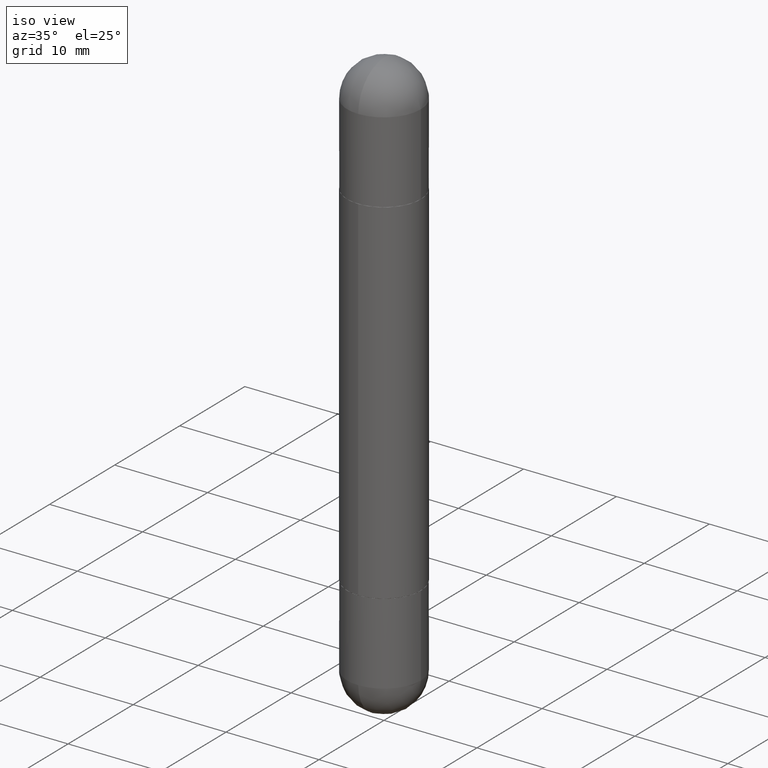
[diagram: clean part render]
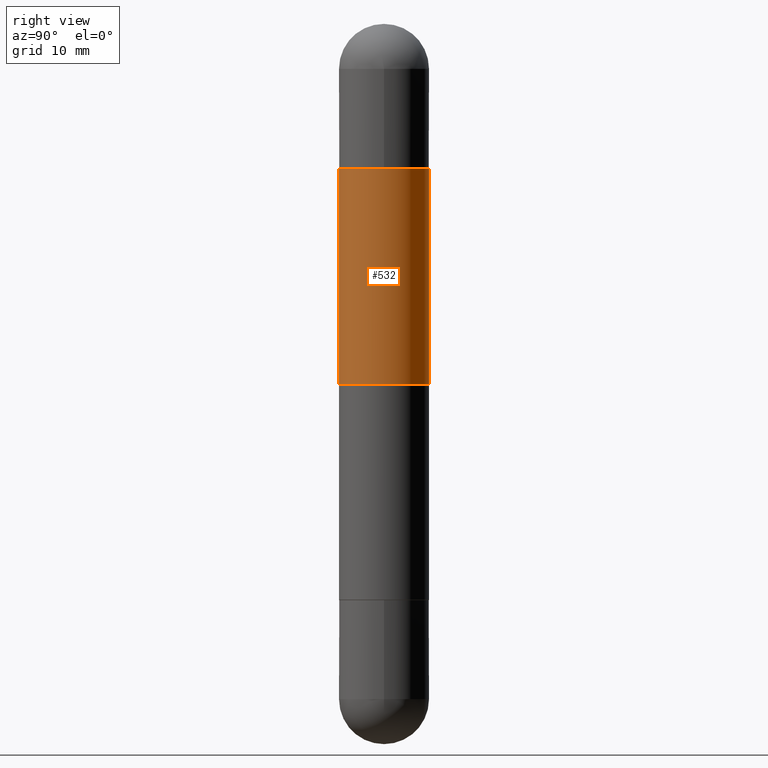
[diagram: tour spotlight — one face highlighted and labeled with its STEP entity id]
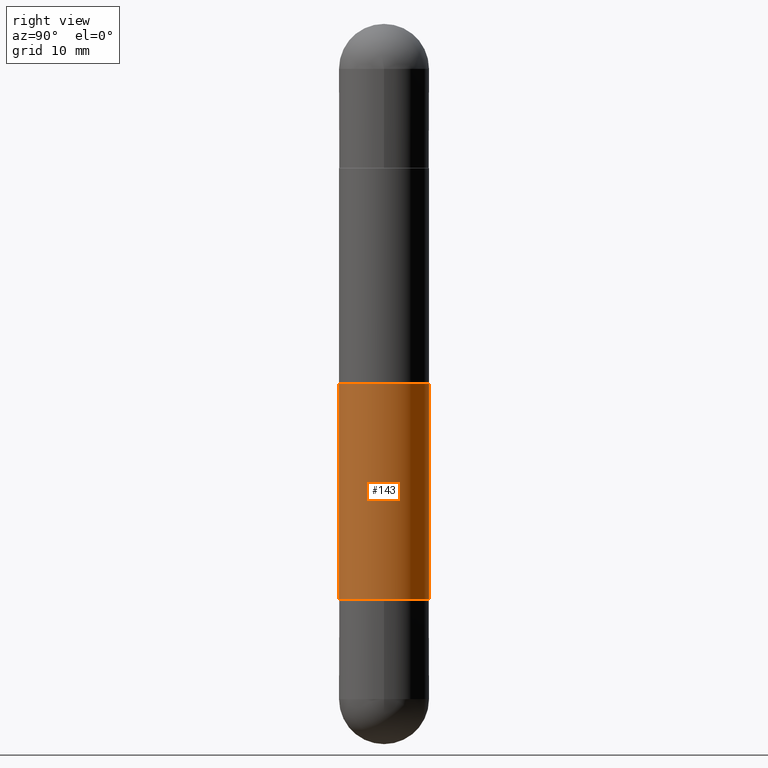
[diagram: tour spotlight — one face highlighted and labeled with its STEP entity id]
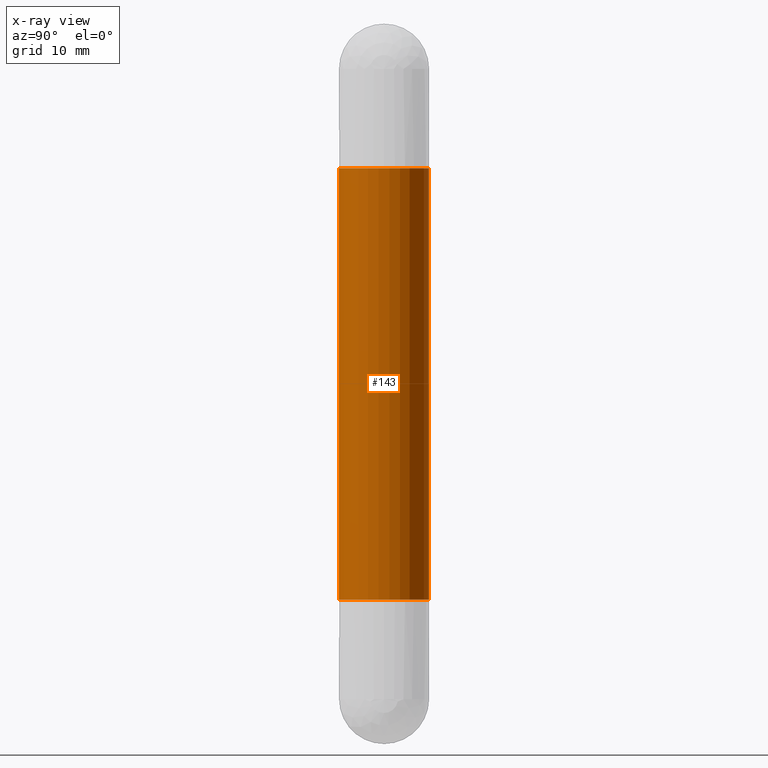
[diagram: x-ray of the same camera — body ghosted, this tour face saturated]
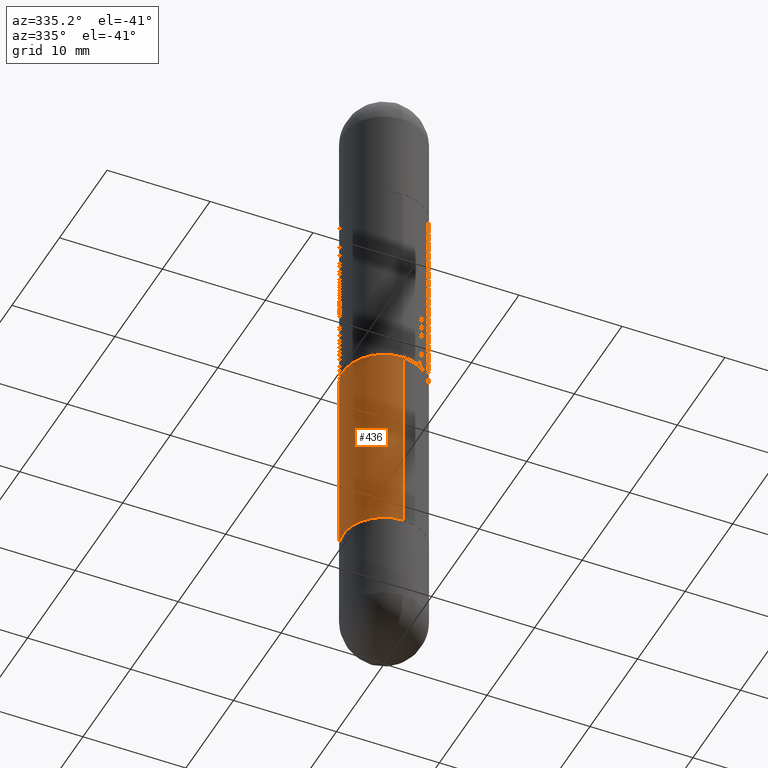
[diagram: tour spotlight — one face highlighted and labeled with its STEP entity id]
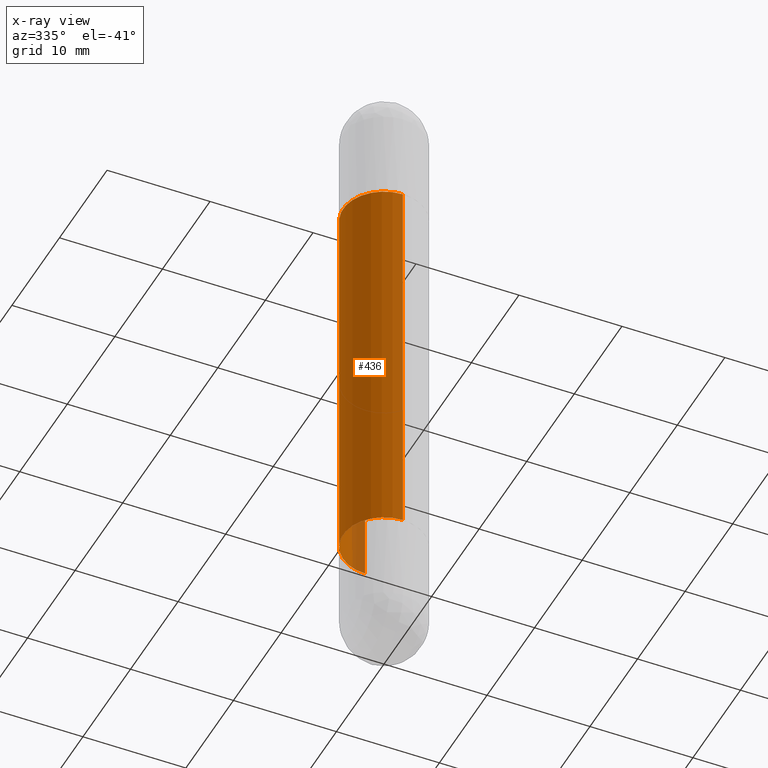
[diagram: x-ray of the same camera — body ghosted, this tour face saturated]
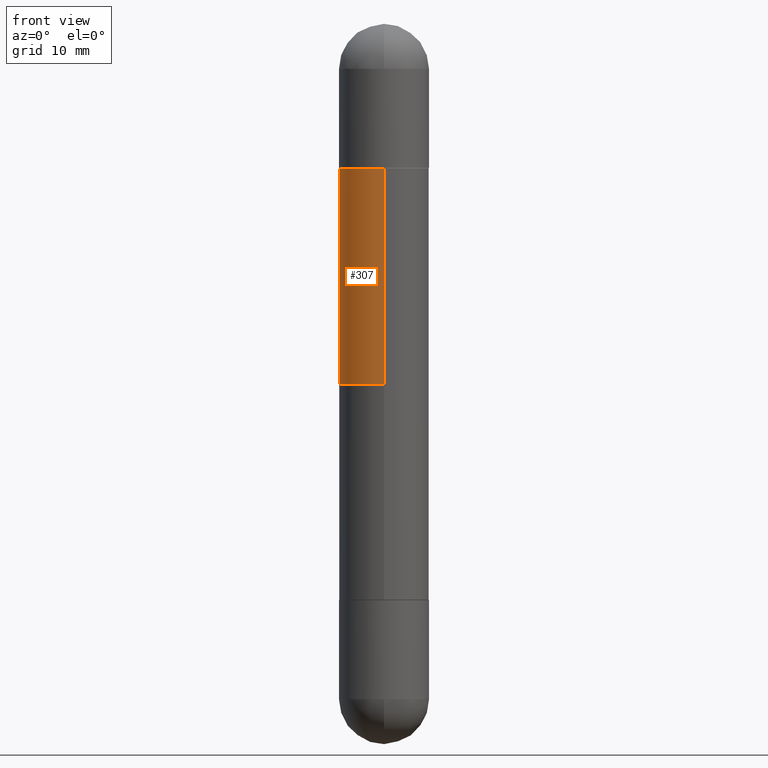
[diagram: tour spotlight — one face highlighted and labeled with its STEP entity id]
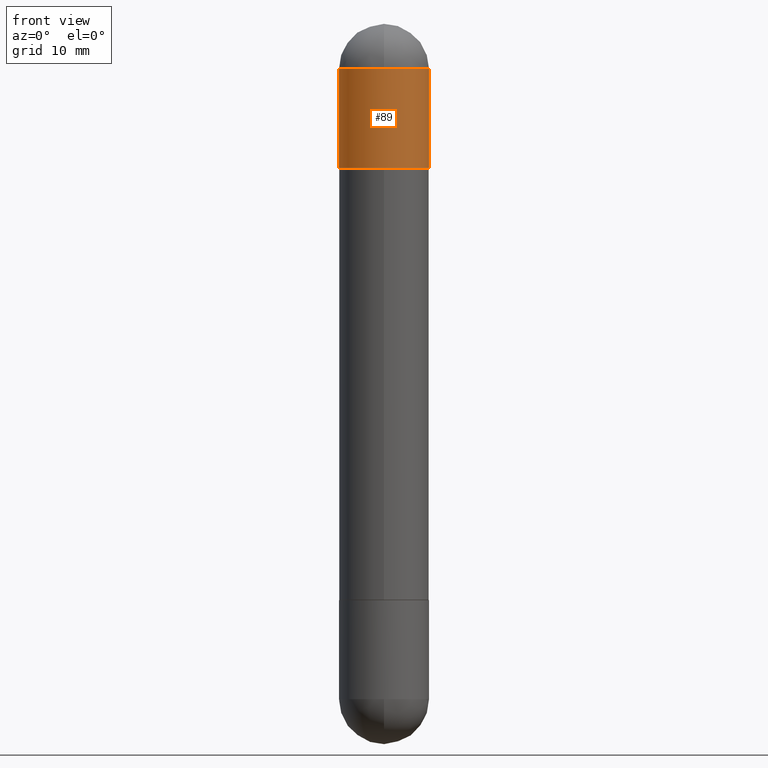
[diagram: tour spotlight — one face highlighted and labeled with its STEP entity id]
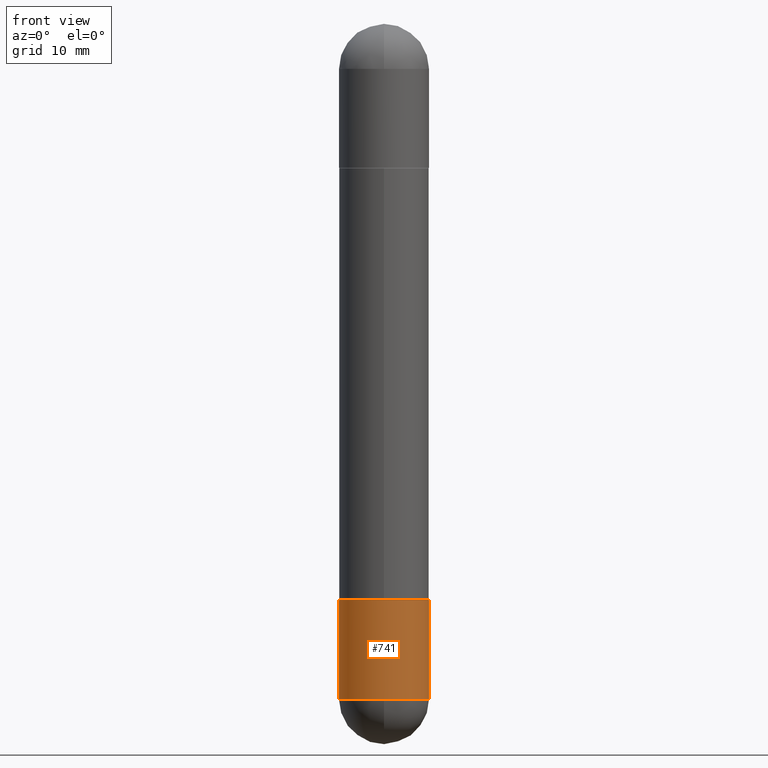
[diagram: tour spotlight — one face highlighted and labeled with its STEP entity id]
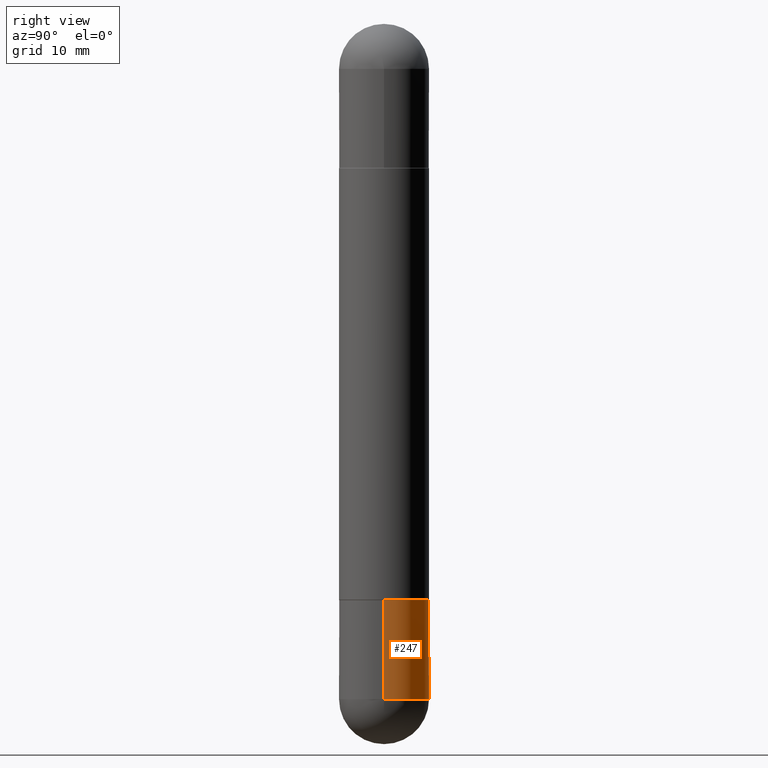
[diagram: tour spotlight — one face highlighted and labeled with its STEP entity id]
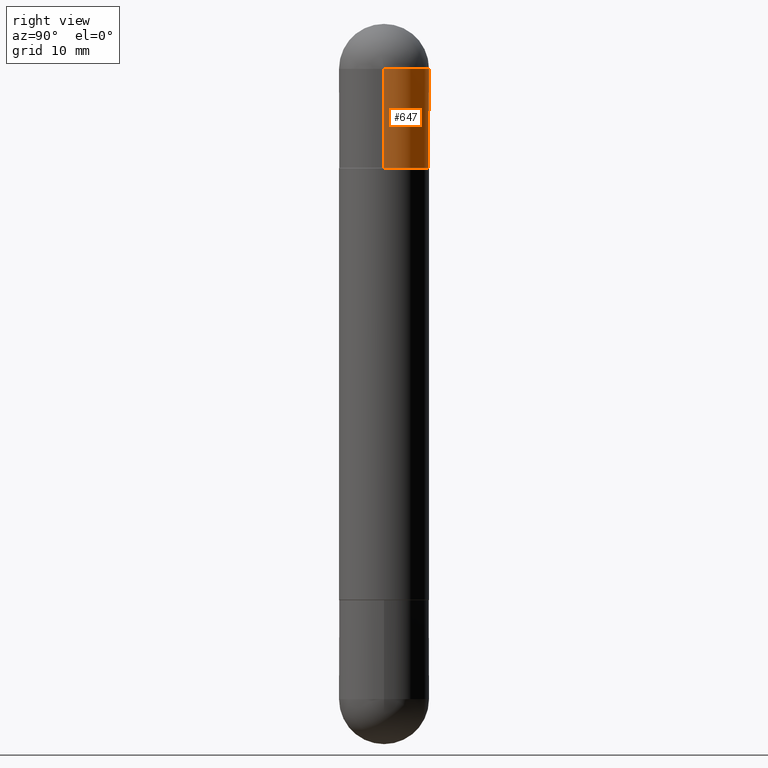
[diagram: tour spotlight — one face highlighted and labeled with its STEP entity id]
A machine part: a face-by-face anatomy tour. The part has 29 B-rep faces; the first image is the clean iso view, then the 8 largest visible faces are spotlighted one at a time (largest first), each with its STEP entity span.

Face 1 — right view, entity #532. In plain terms, the highlighted cylindrical surface (partial cylindrical patch) has radius 3.9688 mm, axis along (-0, 0, -1).
Definition (entity closure, byte-faithful):
#4 = EDGE_CURVE ( 'NONE', #322, #37, #410, .T. ) ;
#5 = ORIENTED_EDGE ( 'NONE', *, *, #4, .F. ) ;
#32 = VERTEX_POINT ( 'NONE', #68 ) ;
#37 = VERTEX_POINT ( 'NONE', #330 ) ;
#62 = AXIS2_PLACEMENT_3D ( 'NONE', #79, #213, #719 ) ;
#67 = LINE ( 'NONE', #127, #598 ) ;
#68 = CARTESIAN_POINT ( 'NONE',  ( 1.071952812151852491E-15, 0.1562499999999933109, -0.5010000000000002229 ) ) ;
#79 = CARTESIAN_POINT ( 'NONE',  ( 3.057380866056473516E-29, -4.363571405421049546E-15, -1.250000000000000222 ) ) ;
#87 = EDGE_LOOP ( 'NONE', ( #509, #297, #631, #5 ) ) ;
#93 = AXIS2_PLACEMENT_3D ( 'NONE', #484, #670, #413 ) ;
#116 = DIRECTION ( 'NONE',  ( -2.445904692845177860E-29, 3.490857124336837980E-15, -1.000000000000000000 ) ) ;
#127 = CARTESIAN_POINT ( 'NONE',  ( 1.071952812151802595E-15, 0.1562500000000001388, -2.500000000000000000 ) ) ;
#147 = CARTESIAN_POINT ( 'NONE',  ( -1.091087918388432039E-15, -0.1562500000000072442, -0.5010000000000013332 ) ) ;
#169 = DIRECTION ( 'NONE',  ( -2.445904692845177860E-29, 3.490857124336837980E-15, -1.000000000000000000 ) ) ;
#178 = DIRECTION ( 'NONE',  ( -6.982962677686265922E-15, -1.000000000000000000, -3.496765431890253764E-15 ) ) ;
#194 = VECTOR ( 'NONE', #116, 39.37007874015748143 ) ;
#213 = DIRECTION ( 'NONE',  ( -0.000000000000000000, -0.000000000000000000, -1.000000000000000000 ) ) ;
#296 = EDGE_CURVE ( 'NONE', #817, #37, #441, .T. ) ;
#297 = ORIENTED_EDGE ( 'NONE', *, *, #457, .F. ) ;
#313 = EDGE_CURVE ( 'NONE', #32, #322, #67, .T. ) ;
#322 = VERTEX_POINT ( 'NONE', #744 ) ;
#330 = CARTESIAN_POINT ( 'NONE',  ( -1.091087918388440322E-15, -0.1562500000000045242, -1.250000000000000222 ) ) ;
#357 = CIRCLE ( 'NONE', #93, 0.1562500000000002776 ) ;
#410 = CIRCLE ( 'NONE', #62, 0.1562500000000001388 ) ;
#413 = DIRECTION ( 'NONE',  ( -6.982962677686265922E-15, -1.000000000000000000, -3.496765431890250609E-15 ) ) ;
#425 = DIRECTION ( 'NONE',  ( -2.445904692845178140E-29, 3.490857124336838375E-15, -1.000000000000000000 ) ) ;
#430 = CYLINDRICAL_SURFACE ( 'NONE', #662, 0.1562500000000001388 ) ;
#434 = FACE_OUTER_BOUND ( 'NONE', #87, .T. ) ;
#441 = LINE ( 'NONE', #690, #194 ) ;
#457 = EDGE_CURVE ( 'NONE', #817, #32, #357, .T. ) ;
#484 = CARTESIAN_POINT ( 'NONE',  ( 4.889363480997510794E-29, -6.978223391549339583E-15, -0.5010000000000007780 ) ) ;
#498 = CARTESIAN_POINT ( 'NONE',  ( 0.000000000000000000, 0.000000000000000000, -2.500000000000000444 ) ) ;
#509 = ORIENTED_EDGE ( 'NONE', *, *, #313, .F. ) ;
#532 = ADVANCED_FACE ( 'NONE', ( #434 ), #430, .T. ) ;
#598 = VECTOR ( 'NONE', #169, 39.37007874015748143 ) ;
#631 = ORIENTED_EDGE ( 'NONE', *, *, #296, .T. ) ;
#662 = AXIS2_PLACEMENT_3D ( 'NONE', #498, #425, #178 ) ;
#670 = DIRECTION ( 'NONE',  ( 2.445904692845178140E-29, -3.490857124336838375E-15, 1.000000000000000000 ) ) ;
#690 = CARTESIAN_POINT ( 'NONE',  ( -1.091087918388479962E-15, -0.1562500000000001388, -2.500000000000001332 ) ) ;
#719 = DIRECTION ( 'NONE',  ( -1.000000000000000000, 0.000000000000000000, 0.000000000000000000 ) ) ;
#744 = CARTESIAN_POINT ( 'NONE',  ( 1.071952812151851110E-15, 0.1562499999999957812, -1.250000000000000222 ) ) ;
#817 = VERTEX_POINT ( 'NONE', #147 ) ;

Face 2 — right view, entity #143. An x-ray twin of the same camera follows (body ghosted, this face saturated) — the face is partly hidden behind the body. In plain terms, the highlighted cylindrical surface (partial cylindrical patch) has radius 3.9688 mm, axis along (-0, 0, -1).
Definition (entity closure, byte-faithful):
#34 = DIRECTION ( 'NONE',  ( -6.982962677686265922E-15, -1.000000000000000000, 3.496765431890250609E-15 ) ) ;
#60 = CARTESIAN_POINT ( 'NONE',  ( 4.889363480997510794E-29, -6.978223391549339583E-15, -0.5010000000000007780 ) ) ;
#114 = DIRECTION ( 'NONE',  ( -2.445904692845178140E-29, 3.490857124336838375E-15, 1.000000000000000000 ) ) ;
#121 = LINE ( 'NONE', #251, #287 ) ;
#135 = CIRCLE ( 'NONE', #688, 0.1562500000000002776 ) ;
#143 = ADVANCED_FACE ( 'NONE', ( #156 ), #214, .T. ) ;
#156 = FACE_OUTER_BOUND ( 'NONE', #165, .T. ) ;
#165 = EDGE_LOOP ( 'NONE', ( #179, #635, #619, #438 ) ) ;
#179 = ORIENTED_EDGE ( 'NONE', *, *, #680, .F. ) ;
#196 = DIRECTION ( 'NONE',  ( -6.982962677686265922E-15, -1.000000000000000000, -3.496765431890250609E-15 ) ) ;
#204 = AXIS2_PLACEMENT_3D ( 'NONE', #417, #471, #654 ) ;
#214 = CYLINDRICAL_SURFACE ( 'NONE', #204, 0.1562500000000001388 ) ;
#227 = CARTESIAN_POINT ( 'NONE',  ( 1.071952812151852491E-15, 0.1562499999999933109, -0.5010000000000002229 ) ) ;
#230 = CARTESIAN_POINT ( 'NONE',  ( 1.071952812151833755E-15, 0.1562499999999933109, -1.999000000000000554 ) ) ;
#251 = CARTESIAN_POINT ( 'NONE',  ( -1.091087918388479962E-15, -0.1562500000000001388, -2.500000000000001332 ) ) ;
#253 = DIRECTION ( 'NONE',  ( 2.445904692845178140E-29, -3.490857124336838375E-15, 1.000000000000000000 ) ) ;
#287 = VECTOR ( 'NONE', #388, 39.37007874015748143 ) ;
#295 = VERTEX_POINT ( 'NONE', #555 ) ;
#315 = VECTOR ( 'NONE', #449, 39.37007874015748143 ) ;
#321 = LINE ( 'NONE', #445, #315 ) ;
#338 = VERTEX_POINT ( 'NONE', #416 ) ;
#372 = CARTESIAN_POINT ( 'NONE',  ( 4.889363480997510794E-29, -6.978223391549339583E-15, -1.998999999999999888 ) ) ;
#375 = AXIS2_PLACEMENT_3D ( 'NONE', #60, #253, #196 ) ;
#388 = DIRECTION ( 'NONE',  ( -2.445904692845177860E-29, 3.490857124336837980E-15, -1.000000000000000000 ) ) ;
#416 = CARTESIAN_POINT ( 'NONE',  ( -1.091087918388432039E-15, -0.1562500000000072442, -0.5010000000000013332 ) ) ;
#417 = CARTESIAN_POINT ( 'NONE',  ( 0.000000000000000000, 0.000000000000000000, -2.500000000000000444 ) ) ;
#429 = VERTEX_POINT ( 'NONE', #227 ) ;
#438 = ORIENTED_EDGE ( 'NONE', *, *, #588, .T. ) ;
#445 = CARTESIAN_POINT ( 'NONE',  ( 1.071952812151802595E-15, 0.1562500000000001388, -2.500000000000000000 ) ) ;
#449 = DIRECTION ( 'NONE',  ( -2.445904692845177860E-29, 3.490857124336837980E-15, -1.000000000000000000 ) ) ;
#471 = DIRECTION ( 'NONE',  ( -2.445904692845178140E-29, 3.490857124336838375E-15, -1.000000000000000000 ) ) ;
#555 = CARTESIAN_POINT ( 'NONE',  ( -1.091087918388432039E-15, -0.1562500000000072442, -1.998999999999999444 ) ) ;
#588 = EDGE_CURVE ( 'NONE', #295, #629, #135, .T. ) ;
#619 = ORIENTED_EDGE ( 'NONE', *, *, #788, .T. ) ;
#629 = VERTEX_POINT ( 'NONE', #230 ) ;
#635 = ORIENTED_EDGE ( 'NONE', *, *, #692, .F. ) ;
#654 = DIRECTION ( 'NONE',  ( -6.982962677686265922E-15, -1.000000000000000000, -3.496765431890253764E-15 ) ) ;
#680 = EDGE_CURVE ( 'NONE', #429, #629, #321, .T. ) ;
#688 = AXIS2_PLACEMENT_3D ( 'NONE', #372, #114, #34 ) ;
#692 = EDGE_CURVE ( 'NONE', #338, #429, #815, .T. ) ;
#788 = EDGE_CURVE ( 'NONE', #338, #295, #121, .T. ) ;
#815 = CIRCLE ( 'NONE', #375, 0.1562500000000002776 ) ;

Face 3 — auxiliary view, entity #436. An x-ray twin of the same camera follows (body ghosted, this face saturated) — the face is partly hidden behind the body. In plain terms, the highlighted cylindrical surface (partial cylindrical patch) has radius 3.9688 mm, axis along (-0, 0, -1).
Definition (entity closure, byte-faithful):
#75 = FACE_OUTER_BOUND ( 'NONE', #303, .T. ) ;
#112 = ORIENTED_EDGE ( 'NONE', *, *, #680, .T. ) ;
#121 = LINE ( 'NONE', #251, #287 ) ;
#211 = DIRECTION ( 'NONE',  ( -2.445904692845178140E-29, 3.490857124336838375E-15, 1.000000000000000000 ) ) ;
#226 = CARTESIAN_POINT ( 'NONE',  ( 4.889363480997510794E-29, -6.978223391549339583E-15, -1.998999999999999888 ) ) ;
#227 = CARTESIAN_POINT ( 'NONE',  ( 1.071952812151852491E-15, 0.1562499999999933109, -0.5010000000000002229 ) ) ;
#230 = CARTESIAN_POINT ( 'NONE',  ( 1.071952812151833755E-15, 0.1562499999999933109, -1.999000000000000554 ) ) ;
#245 = EDGE_CURVE ( 'NONE', #629, #295, #775, .T. ) ;
#251 = CARTESIAN_POINT ( 'NONE',  ( -1.091087918388479962E-15, -0.1562500000000001388, -2.500000000000001332 ) ) ;
#279 = DIRECTION ( 'NONE',  ( -2.445904692845178140E-29, 3.490857124336838375E-15, -1.000000000000000000 ) ) ;
#286 = CIRCLE ( 'NONE', #396, 0.1562500000000002776 ) ;
#287 = VECTOR ( 'NONE', #388, 39.37007874015748143 ) ;
#295 = VERTEX_POINT ( 'NONE', #555 ) ;
#303 = EDGE_LOOP ( 'NONE', ( #701, #112, #801, #517 ) ) ;
#315 = VECTOR ( 'NONE', #449, 39.37007874015748143 ) ;
#321 = LINE ( 'NONE', #445, #315 ) ;
#338 = VERTEX_POINT ( 'NONE', #416 ) ;
#388 = DIRECTION ( 'NONE',  ( -2.445904692845177860E-29, 3.490857124336837980E-15, -1.000000000000000000 ) ) ;
#396 = AXIS2_PLACEMENT_3D ( 'NONE', #642, #508, #696 ) ;
#416 = CARTESIAN_POINT ( 'NONE',  ( -1.091087918388432039E-15, -0.1562500000000072442, -0.5010000000000013332 ) ) ;
#424 = AXIS2_PLACEMENT_3D ( 'NONE', #226, #211, #483 ) ;
#429 = VERTEX_POINT ( 'NONE', #227 ) ;
#436 = ADVANCED_FACE ( 'NONE', ( #75 ), #539, .T. ) ;
#445 = CARTESIAN_POINT ( 'NONE',  ( 1.071952812151802595E-15, 0.1562500000000001388, -2.500000000000000000 ) ) ;
#449 = DIRECTION ( 'NONE',  ( -2.445904692845177860E-29, 3.490857124336837980E-15, -1.000000000000000000 ) ) ;
#480 = DIRECTION ( 'NONE',  ( -6.982962677686265922E-15, -1.000000000000000000, -3.496765431890253764E-15 ) ) ;
#483 = DIRECTION ( 'NONE',  ( -6.982962677686265922E-15, -1.000000000000000000, 3.496765431890250609E-15 ) ) ;
#504 = AXIS2_PLACEMENT_3D ( 'NONE', #718, #279, #480 ) ;
#508 = DIRECTION ( 'NONE',  ( 2.445904692845178140E-29, -3.490857124336838375E-15, 1.000000000000000000 ) ) ;
#517 = ORIENTED_EDGE ( 'NONE', *, *, #788, .F. ) ;
#539 = CYLINDRICAL_SURFACE ( 'NONE', #504, 0.1562500000000001388 ) ;
#555 = CARTESIAN_POINT ( 'NONE',  ( -1.091087918388432039E-15, -0.1562500000000072442, -1.998999999999999444 ) ) ;
#629 = VERTEX_POINT ( 'NONE', #230 ) ;
#642 = CARTESIAN_POINT ( 'NONE',  ( 4.889363480997510794E-29, -6.978223391549339583E-15, -0.5010000000000007780 ) ) ;
#680 = EDGE_CURVE ( 'NONE', #429, #629, #321, .T. ) ;
#696 = DIRECTION ( 'NONE',  ( -6.982962677686265922E-15, -1.000000000000000000, -3.496765431890250609E-15 ) ) ;
#701 = ORIENTED_EDGE ( 'NONE', *, *, #797, .F. ) ;
#718 = CARTESIAN_POINT ( 'NONE',  ( 0.000000000000000000, 0.000000000000000000, -2.500000000000000444 ) ) ;
#775 = CIRCLE ( 'NONE', #424, 0.1562500000000002776 ) ;
#788 = EDGE_CURVE ( 'NONE', #338, #295, #121, .T. ) ;
#797 = EDGE_CURVE ( 'NONE', #429, #338, #286, .T. ) ;
#801 = ORIENTED_EDGE ( 'NONE', *, *, #245, .T. ) ;

Face 4 — front view, entity #307. In plain terms, the highlighted cylindrical surface (partial cylindrical patch) has radius 3.9688 mm, axis along (-0, 0, -1).
Definition (entity closure, byte-faithful):
#32 = VERTEX_POINT ( 'NONE', #68 ) ;
#37 = VERTEX_POINT ( 'NONE', #330 ) ;
#49 = FACE_OUTER_BOUND ( 'NONE', #643, .T. ) ;
#65 = AXIS2_PLACEMENT_3D ( 'NONE', #714, #271, #358 ) ;
#67 = LINE ( 'NONE', #127, #598 ) ;
#68 = CARTESIAN_POINT ( 'NONE',  ( 1.071952812151852491E-15, 0.1562499999999933109, -0.5010000000000002229 ) ) ;
#115 = ORIENTED_EDGE ( 'NONE', *, *, #729, .F. ) ;
#116 = DIRECTION ( 'NONE',  ( -2.445904692845177860E-29, 3.490857124336837980E-15, -1.000000000000000000 ) ) ;
#127 = CARTESIAN_POINT ( 'NONE',  ( 1.071952812151802595E-15, 0.1562500000000001388, -2.500000000000000000 ) ) ;
#147 = CARTESIAN_POINT ( 'NONE',  ( -1.091087918388432039E-15, -0.1562500000000072442, -0.5010000000000013332 ) ) ;
#169 = DIRECTION ( 'NONE',  ( -2.445904692845177860E-29, 3.490857124336837980E-15, -1.000000000000000000 ) ) ;
#194 = VECTOR ( 'NONE', #116, 39.37007874015748143 ) ;
#269 = CIRCLE ( 'NONE', #725, 0.1562500000000001388 ) ;
#271 = DIRECTION ( 'NONE',  ( 2.445904692845178140E-29, -3.490857124336838375E-15, 1.000000000000000000 ) ) ;
#292 = CARTESIAN_POINT ( 'NONE',  ( 0.000000000000000000, 0.000000000000000000, -2.500000000000000444 ) ) ;
#296 = EDGE_CURVE ( 'NONE', #817, #37, #441, .T. ) ;
#307 = ADVANCED_FACE ( 'NONE', ( #49 ), #428, .T. ) ;
#313 = EDGE_CURVE ( 'NONE', #32, #322, #67, .T. ) ;
#322 = VERTEX_POINT ( 'NONE', #744 ) ;
#330 = CARTESIAN_POINT ( 'NONE',  ( -1.091087918388440322E-15, -0.1562500000000045242, -1.250000000000000222 ) ) ;
#358 = DIRECTION ( 'NONE',  ( -6.982962677686265922E-15, -1.000000000000000000, -3.496765431890250609E-15 ) ) ;
#360 = ORIENTED_EDGE ( 'NONE', *, *, #423, .F. ) ;
#411 = AXIS2_PLACEMENT_3D ( 'NONE', #292, #486, #491 ) ;
#423 = EDGE_CURVE ( 'NONE', #32, #817, #439, .T. ) ;
#428 = CYLINDRICAL_SURFACE ( 'NONE', #411, 0.1562500000000001388 ) ;
#439 = CIRCLE ( 'NONE', #65, 0.1562500000000002776 ) ;
#441 = LINE ( 'NONE', #690, #194 ) ;
#486 = DIRECTION ( 'NONE',  ( -2.445904692845178140E-29, 3.490857124336838375E-15, -1.000000000000000000 ) ) ;
#491 = DIRECTION ( 'NONE',  ( -6.982962677686265922E-15, -1.000000000000000000, -3.496765431890253764E-15 ) ) ;
#598 = VECTOR ( 'NONE', #169, 39.37007874015748143 ) ;
#636 = CARTESIAN_POINT ( 'NONE',  ( 3.057380866056473516E-29, -4.363571405421049546E-15, -1.250000000000000222 ) ) ;
#643 = EDGE_LOOP ( 'NONE', ( #360, #697, #115, #684 ) ) ;
#684 = ORIENTED_EDGE ( 'NONE', *, *, #296, .F. ) ;
#690 = CARTESIAN_POINT ( 'NONE',  ( -1.091087918388479962E-15, -0.1562500000000001388, -2.500000000000001332 ) ) ;
#697 = ORIENTED_EDGE ( 'NONE', *, *, #313, .T. ) ;
#707 = DIRECTION ( 'NONE',  ( -1.000000000000000000, 0.000000000000000000, 0.000000000000000000 ) ) ;
#714 = CARTESIAN_POINT ( 'NONE',  ( 4.889363480997510794E-29, -6.978223391549339583E-15, -0.5010000000000007780 ) ) ;
#725 = AXIS2_PLACEMENT_3D ( 'NONE', #636, #768, #707 ) ;
#729 = EDGE_CURVE ( 'NONE', #37, #322, #269, .T. ) ;
#744 = CARTESIAN_POINT ( 'NONE',  ( 1.071952812151851110E-15, 0.1562499999999957812, -1.250000000000000222 ) ) ;
#768 = DIRECTION ( 'NONE',  ( -0.000000000000000000, -0.000000000000000000, -1.000000000000000000 ) ) ;
#817 = VERTEX_POINT ( 'NONE', #147 ) ;

Face 5 — front view, entity #89. In plain terms, the highlighted cylindrical surface (partial cylindrical patch) has radius 3.9688 mm, axis along (-0, 0, -1).
Definition (entity closure, byte-faithful):
#18 = CARTESIAN_POINT ( 'NONE',  ( 4.890937612370273194E-29, -6.982962677686291165E-15, -0.5000000000000006661 ) ) ;
#31 = AXIS2_PLACEMENT_3D ( 'NONE', #18, #212, #468 ) ;
#43 = ORIENTED_EDGE ( 'NONE', *, *, #365, .F. ) ;
#77 = AXIS2_PLACEMENT_3D ( 'NONE', #208, #298, #748 ) ;
#89 = ADVANCED_FACE ( 'NONE', ( #536 ), #216, .T. ) ;
#106 = DIRECTION ( 'NONE',  ( 2.445468806185136597E-29, -3.491481338843145583E-15, 1.000000000000000000 ) ) ;
#133 = AXIS2_PLACEMENT_3D ( 'NONE', #394, #266, #723 ) ;
#191 = DIRECTION ( 'NONE',  ( -2.445468806185136877E-29, 3.491481338843145188E-15, -1.000000000000000000 ) ) ;
#206 = CARTESIAN_POINT ( 'NONE',  ( 5.731567514496413899E-29, -8.183159387913622595E-15, -0.1562500000000005551 ) ) ;
#208 = CARTESIAN_POINT ( 'NONE',  ( 5.731567514496413899E-29, -8.183159387913622595E-15, -0.1562500000000005551 ) ) ;
#212 = DIRECTION ( 'NONE',  ( 2.445468806185136597E-29, -3.491481338843145583E-15, 1.000000000000000000 ) ) ;
#216 = CYLINDRICAL_SURFACE ( 'NONE', #133, 0.1562500000000000000 ) ;
#222 = CIRCLE ( 'NONE', #77, 0.1562500000000000000 ) ;
#224 = LINE ( 'NONE', #611, #686 ) ;
#249 = VERTEX_POINT ( 'NONE', #467 ) ;
#256 = EDGE_LOOP ( 'NONE', ( #751, #557, #363, #43, #300 ) ) ;
#258 = EDGE_CURVE ( 'NONE', #319, #645, #526, .T. ) ;
#259 = LINE ( 'NONE', #454, #765 ) ;
#266 = DIRECTION ( 'NONE',  ( -2.445468806185136597E-29, 3.491481338843145583E-15, -1.000000000000000000 ) ) ;
#267 = AXIS2_PLACEMENT_3D ( 'NONE', #206, #106, #804 ) ;
#298 = DIRECTION ( 'NONE',  ( 2.445468806185136597E-29, -3.491481338843145583E-15, 1.000000000000000000 ) ) ;
#300 = ORIENTED_EDGE ( 'NONE', *, *, #258, .F. ) ;
#319 = VERTEX_POINT ( 'NONE', #556 ) ;
#363 = ORIENTED_EDGE ( 'NONE', *, *, #414, .T. ) ;
#365 = EDGE_CURVE ( 'NONE', #645, #507, #224, .T. ) ;
#394 = CARTESIAN_POINT ( 'NONE',  ( 0.000000000000000000, 0.000000000000000000, -2.500000000000000444 ) ) ;
#414 = EDGE_CURVE ( 'NONE', #249, #507, #584, .T. ) ;
#418 = DIRECTION ( 'NONE',  ( -2.445468806185136877E-29, 3.491481338843145188E-15, -1.000000000000000000 ) ) ;
#433 = VERTEX_POINT ( 'NONE', #606 ) ;
#454 = CARTESIAN_POINT ( 'NONE',  ( -0.1562500000000000000, 1.071952812151801807E-15, -2.500000000000000444 ) ) ;
#467 = CARTESIAN_POINT ( 'NONE',  ( -0.1562500000000000000, -6.511108220648155468E-15, -0.5000000000000006661 ) ) ;
#468 = DIRECTION ( 'NONE',  ( 1.000000000000000000, -6.982962677686269077E-15, 0.000000000000000000 ) ) ;
#507 = VERTEX_POINT ( 'NONE', #535 ) ;
#519 = EDGE_CURVE ( 'NONE', #433, #319, #222, .T. ) ;
#526 = CIRCLE ( 'NONE', #267, 0.1562500000000000000 ) ;
#535 = CARTESIAN_POINT ( 'NONE',  ( 0.1562500000000000000, -8.074050596074770339E-15, -0.5000000000000006661 ) ) ;
#536 = FACE_OUTER_BOUND ( 'NONE', #256, .T. ) ;
#556 = CARTESIAN_POINT ( 'NONE',  ( -1.071952812151746981E-15, -0.1562500000000085487, -0.1562500000000011102 ) ) ;
#557 = ORIENTED_EDGE ( 'NONE', *, *, #655, .T. ) ;
#584 = CIRCLE ( 'NONE', #31, 0.1562500000000000000 ) ;
#606 = CARTESIAN_POINT ( 'NONE',  ( -0.1562500000000000000, -6.511108220648156257E-15, -0.1562500000000005551 ) ) ;
#611 = CARTESIAN_POINT ( 'NONE',  ( 0.1562500000000000000, -1.091087918388479174E-15, -2.500000000000000444 ) ) ;
#645 = VERTEX_POINT ( 'NONE', #648 ) ;
#648 = CARTESIAN_POINT ( 'NONE',  ( 0.1562500000000000000, -8.674148951188436448E-15, -0.1562500000000005551 ) ) ;
#655 = EDGE_CURVE ( 'NONE', #433, #249, #259, .T. ) ;
#686 = VECTOR ( 'NONE', #418, 39.37007874015748143 ) ;
#723 = DIRECTION ( 'NONE',  ( 1.000000000000000000, -6.982962677686266711E-15, 0.000000000000000000 ) ) ;
#748 = DIRECTION ( 'NONE',  ( 1.000000000000000000, -6.982962677686262766E-15, 0.000000000000000000 ) ) ;
#751 = ORIENTED_EDGE ( 'NONE', *, *, #519, .F. ) ;
#765 = VECTOR ( 'NONE', #191, 39.37007874015748143 ) ;
#804 = DIRECTION ( 'NONE',  ( 1.000000000000000000, -6.982962677686262766E-15, 0.000000000000000000 ) ) ;

Face 6 — front view, entity #741. In plain terms, the highlighted cylindrical surface (partial cylindrical patch) has radius 3.9688 mm, axis along (-0, 0, 1).
Definition (entity closure, byte-faithful):
#23 = DIRECTION ( 'NONE',  ( -2.445468806185136597E-29, 3.491481338843145583E-15, 1.000000000000000000 ) ) ;
#63 = EDGE_CURVE ( 'NONE', #623, #492, #814, .T. ) ;
#81 = DIRECTION ( 'NONE',  ( 1.000000000000000000, -6.982962677686262766E-15, 0.000000000000000000 ) ) ;
#88 = CARTESIAN_POINT ( 'NONE',  ( -0.1562500000000000000, 1.110223024625156540E-15, -7.685836078523291160E-30 ) ) ;
#144 = LINE ( 'NONE', #88, #709 ) ;
#164 = CARTESIAN_POINT ( 'NONE',  ( -0.1562500000000000000, -6.472838008174799945E-15, -2.000000000000000000 ) ) ;
#183 = ORIENTED_EDGE ( 'NONE', *, *, #187, .T. ) ;
#187 = EDGE_CURVE ( 'NONE', #453, #289, #314, .T. ) ;
#195 = VECTOR ( 'NONE', #659, 39.37007874015748143 ) ;
#197 = ORIENTED_EDGE ( 'NONE', *, *, #564, .T. ) ;
#257 = AXIS2_PLACEMENT_3D ( 'NONE', #664, #352, #81 ) ;
#261 = DIRECTION ( 'NONE',  ( -2.445468806185136597E-29, 3.491481338843145583E-15, 1.000000000000000000 ) ) ;
#285 = CARTESIAN_POINT ( 'NONE',  ( 0.1562500000000000000, -1.091087918388479174E-15, 7.619026212181150377E-30 ) ) ;
#289 = VERTEX_POINT ( 'NONE', #362 ) ;
#314 = CIRCLE ( 'NONE', #257, 0.1562500000000000000 ) ;
#352 = DIRECTION ( 'NONE',  ( -2.445468806185136597E-29, 3.491481338843145583E-15, 1.000000000000000000 ) ) ;
#353 = LINE ( 'NONE', #285, #195 ) ;
#362 = CARTESIAN_POINT ( 'NONE',  ( -1.110223024625101517E-15, -0.1562500000000085487, -2.343749999999999556 ) ) ;
#367 = EDGE_LOOP ( 'NONE', ( #582, #183, #197, #689, #805 ) ) ;
#393 = CARTESIAN_POINT ( 'NONE',  ( 0.000000000000000000, 0.000000000000000000, 0.000000000000000000 ) ) ;
#404 = DIRECTION ( 'NONE',  ( -2.445468806185136877E-29, 3.491481338843145188E-15, 1.000000000000000000 ) ) ;
#440 = CIRCLE ( 'NONE', #505, 0.1562500000000000000 ) ;
#453 = VERTEX_POINT ( 'NONE', #728 ) ;
#456 = FACE_OUTER_BOUND ( 'NONE', #367, .T. ) ;
#472 = EDGE_CURVE ( 'NONE', #453, #623, #144, .T. ) ;
#476 = AXIS2_PLACEMENT_3D ( 'NONE', #603, #23, #715 ) ;
#487 = EDGE_CURVE ( 'NONE', #549, #492, #353, .T. ) ;
#492 = VERTEX_POINT ( 'NONE', #602 ) ;
#495 = DIRECTION ( 'NONE',  ( 1.000000000000000000, -6.982962677686262766E-15, 0.000000000000000000 ) ) ;
#505 = AXIS2_PLACEMENT_3D ( 'NONE', #802, #677, #495 ) ;
#522 = DIRECTION ( 'NONE',  ( 1.000000000000000000, -6.982962677686266711E-15, 4.876176775795936353E-29 ) ) ;
#527 = AXIS2_PLACEMENT_3D ( 'NONE', #393, #261, #522 ) ;
#549 = VERTEX_POINT ( 'NONE', #551 ) ;
#551 = CARTESIAN_POINT ( 'NONE',  ( 0.1562500000000000000, -8.674148951188436448E-15, -2.343750000000000000 ) ) ;
#564 = EDGE_CURVE ( 'NONE', #289, #549, #440, .T. ) ;
#582 = ORIENTED_EDGE ( 'NONE', *, *, #472, .F. ) ;
#602 = CARTESIAN_POINT ( 'NONE',  ( 0.1562500000000000000, -8.074050596074770339E-15, -2.000000000000000000 ) ) ;
#603 = CARTESIAN_POINT ( 'NONE',  ( 4.890937612370273194E-29, -6.982962677686291165E-15, -2.000000000000000000 ) ) ;
#623 = VERTEX_POINT ( 'NONE', #164 ) ;
#659 = DIRECTION ( 'NONE',  ( -2.445468806185136877E-29, 3.491481338843145188E-15, 1.000000000000000000 ) ) ;
#664 = CARTESIAN_POINT ( 'NONE',  ( 5.731567514496413899E-29, -8.183159387913622595E-15, -2.343750000000000000 ) ) ;
#677 = DIRECTION ( 'NONE',  ( -2.445468806185136597E-29, 3.491481338843145583E-15, 1.000000000000000000 ) ) ;
#689 = ORIENTED_EDGE ( 'NONE', *, *, #487, .T. ) ;
#705 = CYLINDRICAL_SURFACE ( 'NONE', #527, 0.1562500000000000000 ) ;
#709 = VECTOR ( 'NONE', #404, 39.37007874015748143 ) ;
#715 = DIRECTION ( 'NONE',  ( 1.000000000000000000, -6.982962677686269077E-15, 0.000000000000000000 ) ) ;
#728 = CARTESIAN_POINT ( 'NONE',  ( -0.1562500000000000000, -6.472838008174800734E-15, -2.343750000000000000 ) ) ;
#741 = ADVANCED_FACE ( 'NONE', ( #456 ), #705, .T. ) ;
#802 = CARTESIAN_POINT ( 'NONE',  ( 5.731567514496413899E-29, -8.183159387913622595E-15, -2.343750000000000000 ) ) ;
#805 = ORIENTED_EDGE ( 'NONE', *, *, #63, .F. ) ;
#814 = CIRCLE ( 'NONE', #476, 0.1562500000000000000 ) ;

Face 7 — right view, entity #247. In plain terms, the highlighted cylindrical surface (partial cylindrical patch) has radius 3.9688 mm, axis along (-0, 0, 1).
Definition (entity closure, byte-faithful):
#8 = CIRCLE ( 'NONE', #326, 0.1562500000000000000 ) ;
#33 = CYLINDRICAL_SURFACE ( 'NONE', #451, 0.1562500000000000000 ) ;
#42 = CIRCLE ( 'NONE', #151, 0.1562500000000000000 ) ;
#88 = CARTESIAN_POINT ( 'NONE',  ( -0.1562500000000000000, 1.110223024625156540E-15, -7.685836078523291160E-30 ) ) ;
#91 = DIRECTION ( 'NONE',  ( -2.445468806185136597E-29, 3.491481338843145583E-15, 1.000000000000000000 ) ) ;
#144 = LINE ( 'NONE', #88, #709 ) ;
#148 = DIRECTION ( 'NONE',  ( 1.000000000000000000, -6.982962677686262766E-15, 0.000000000000000000 ) ) ;
#151 = AXIS2_PLACEMENT_3D ( 'NONE', #343, #91, #421 ) ;
#159 = EDGE_CURVE ( 'NONE', #549, #381, #8, .T. ) ;
#164 = CARTESIAN_POINT ( 'NONE',  ( -0.1562500000000000000, -6.472838008174799945E-15, -2.000000000000000000 ) ) ;
#195 = VECTOR ( 'NONE', #659, 39.37007874015748143 ) ;
#218 = CARTESIAN_POINT ( 'NONE',  ( 5.731567514496413899E-29, -8.183159387913622595E-15, -2.343750000000000000 ) ) ;
#239 = EDGE_CURVE ( 'NONE', #381, #453, #724, .T. ) ;
#243 = ORIENTED_EDGE ( 'NONE', *, *, #239, .T. ) ;
#247 = ADVANCED_FACE ( 'NONE', ( #672 ), #33, .T. ) ;
#285 = CARTESIAN_POINT ( 'NONE',  ( 0.1562500000000000000, -1.091087918388479174E-15, 7.619026212181150377E-30 ) ) ;
#290 = CARTESIAN_POINT ( 'NONE',  ( 0.000000000000000000, 0.000000000000000000, 0.000000000000000000 ) ) ;
#309 = ORIENTED_EDGE ( 'NONE', *, *, #487, .F. ) ;
#326 = AXIS2_PLACEMENT_3D ( 'NONE', #335, #720, #148 ) ;
#335 = CARTESIAN_POINT ( 'NONE',  ( 5.731567514496413899E-29, -8.183159387913622595E-15, -2.343750000000000000 ) ) ;
#336 = CARTESIAN_POINT ( 'NONE',  ( 1.091087918388535577E-15, 0.1562499999999916733, -2.343750000000000444 ) ) ;
#343 = CARTESIAN_POINT ( 'NONE',  ( 4.890937612370273194E-29, -6.982962677686291165E-15, -2.000000000000000000 ) ) ;
#353 = LINE ( 'NONE', #285, #195 ) ;
#356 = DIRECTION ( 'NONE',  ( 1.000000000000000000, -6.982962677686262766E-15, 0.000000000000000000 ) ) ;
#381 = VERTEX_POINT ( 'NONE', #336 ) ;
#389 = EDGE_CURVE ( 'NONE', #492, #623, #42, .T. ) ;
#404 = DIRECTION ( 'NONE',  ( -2.445468806185136877E-29, 3.491481338843145188E-15, 1.000000000000000000 ) ) ;
#421 = DIRECTION ( 'NONE',  ( 1.000000000000000000, -6.982962677686269077E-15, 0.000000000000000000 ) ) ;
#451 = AXIS2_PLACEMENT_3D ( 'NONE', #290, #778, #550 ) ;
#453 = VERTEX_POINT ( 'NONE', #728 ) ;
#472 = EDGE_CURVE ( 'NONE', #453, #623, #144, .T. ) ;
#487 = EDGE_CURVE ( 'NONE', #549, #492, #353, .T. ) ;
#492 = VERTEX_POINT ( 'NONE', #602 ) ;
#549 = VERTEX_POINT ( 'NONE', #551 ) ;
#550 = DIRECTION ( 'NONE',  ( 1.000000000000000000, -6.982962677686266711E-15, 4.876176775795936353E-29 ) ) ;
#551 = CARTESIAN_POINT ( 'NONE',  ( 0.1562500000000000000, -8.674148951188436448E-15, -2.343750000000000000 ) ) ;
#572 = AXIS2_PLACEMENT_3D ( 'NONE', #218, #727, #356 ) ;
#602 = CARTESIAN_POINT ( 'NONE',  ( 0.1562500000000000000, -8.074050596074770339E-15, -2.000000000000000000 ) ) ;
#623 = VERTEX_POINT ( 'NONE', #164 ) ;
#659 = DIRECTION ( 'NONE',  ( -2.445468806185136877E-29, 3.491481338843145188E-15, 1.000000000000000000 ) ) ;
#672 = FACE_OUTER_BOUND ( 'NONE', #747, .T. ) ;
#678 = ORIENTED_EDGE ( 'NONE', *, *, #389, .F. ) ;
#685 = ORIENTED_EDGE ( 'NONE', *, *, #472, .T. ) ;
#709 = VECTOR ( 'NONE', #404, 39.37007874015748143 ) ;
#720 = DIRECTION ( 'NONE',  ( -2.445468806185136597E-29, 3.491481338843145583E-15, 1.000000000000000000 ) ) ;
#724 = CIRCLE ( 'NONE', #572, 0.1562500000000000000 ) ;
#727 = DIRECTION ( 'NONE',  ( -2.445468806185136597E-29, 3.491481338843145583E-15, 1.000000000000000000 ) ) ;
#728 = CARTESIAN_POINT ( 'NONE',  ( -0.1562500000000000000, -6.472838008174800734E-15, -2.343750000000000000 ) ) ;
#747 = EDGE_LOOP ( 'NONE', ( #243, #685, #678, #309, #780 ) ) ;
#778 = DIRECTION ( 'NONE',  ( -2.445468806185136597E-29, 3.491481338843145583E-15, 1.000000000000000000 ) ) ;
#780 = ORIENTED_EDGE ( 'NONE', *, *, #159, .T. ) ;

Face 8 — right view, entity #647. In plain terms, the highlighted cylindrical surface (partial cylindrical patch) has radius 3.9688 mm, axis along (-0, 0, -1).
Definition (entity closure, byte-faithful):
#27 = CARTESIAN_POINT ( 'NONE',  ( 4.890937612370273194E-29, -6.982962677686291165E-15, -0.5000000000000006661 ) ) ;
#51 = DIRECTION ( 'NONE',  ( -2.445468806185136597E-29, 3.491481338843145583E-15, -1.000000000000000000 ) ) ;
#70 = ORIENTED_EDGE ( 'NONE', *, *, #655, .F. ) ;
#78 = EDGE_CURVE ( 'NONE', #507, #249, #180, .T. ) ;
#101 = CARTESIAN_POINT ( 'NONE',  ( 1.091087918388535577E-15, 0.1562499999999916733, -0.1562500000000000000 ) ) ;
#180 = CIRCLE ( 'NONE', #203, 0.1562500000000000000 ) ;
#184 = AXIS2_PLACEMENT_3D ( 'NONE', #702, #644, #324 ) ;
#191 = DIRECTION ( 'NONE',  ( -2.445468806185136877E-29, 3.491481338843145188E-15, -1.000000000000000000 ) ) ;
#203 = AXIS2_PLACEMENT_3D ( 'NONE', #27, #458, #276 ) ;
#224 = LINE ( 'NONE', #611, #686 ) ;
#249 = VERTEX_POINT ( 'NONE', #467 ) ;
#259 = LINE ( 'NONE', #454, #765 ) ;
#276 = DIRECTION ( 'NONE',  ( 1.000000000000000000, -6.982962677686269077E-15, 0.000000000000000000 ) ) ;
#305 = ORIENTED_EDGE ( 'NONE', *, *, #78, .T. ) ;
#310 = VERTEX_POINT ( 'NONE', #101 ) ;
#324 = DIRECTION ( 'NONE',  ( 1.000000000000000000, -6.982962677686262766E-15, 0.000000000000000000 ) ) ;
#365 = EDGE_CURVE ( 'NONE', #645, #507, #224, .T. ) ;
#391 = CYLINDRICAL_SURFACE ( 'NONE', #561, 0.1562500000000000000 ) ;
#415 = EDGE_LOOP ( 'NONE', ( #70, #512, #569, #616, #305 ) ) ;
#418 = DIRECTION ( 'NONE',  ( -2.445468806185136877E-29, 3.491481338843145188E-15, -1.000000000000000000 ) ) ;
#433 = VERTEX_POINT ( 'NONE', #606 ) ;
#454 = CARTESIAN_POINT ( 'NONE',  ( -0.1562500000000000000, 1.071952812151801807E-15, -2.500000000000000444 ) ) ;
#458 = DIRECTION ( 'NONE',  ( 2.445468806185136597E-29, -3.491481338843145583E-15, 1.000000000000000000 ) ) ;
#467 = CARTESIAN_POINT ( 'NONE',  ( -0.1562500000000000000, -6.511108220648155468E-15, -0.5000000000000006661 ) ) ;
#507 = VERTEX_POINT ( 'NONE', #535 ) ;
#512 = ORIENTED_EDGE ( 'NONE', *, *, #784, .F. ) ;
#518 = CARTESIAN_POINT ( 'NONE',  ( 0.000000000000000000, 0.000000000000000000, -2.500000000000000444 ) ) ;
#535 = CARTESIAN_POINT ( 'NONE',  ( 0.1562500000000000000, -8.074050596074770339E-15, -0.5000000000000006661 ) ) ;
#546 = CIRCLE ( 'NONE', #651, 0.1562500000000000000 ) ;
#561 = AXIS2_PLACEMENT_3D ( 'NONE', #518, #51, #760 ) ;
#569 = ORIENTED_EDGE ( 'NONE', *, *, #703, .F. ) ;
#571 = CARTESIAN_POINT ( 'NONE',  ( 5.731567514496413899E-29, -8.183159387913622595E-15, -0.1562500000000005551 ) ) ;
#580 = DIRECTION ( 'NONE',  ( 1.000000000000000000, -6.982962677686262766E-15, 0.000000000000000000 ) ) ;
#599 = CIRCLE ( 'NONE', #184, 0.1562500000000000000 ) ;
#606 = CARTESIAN_POINT ( 'NONE',  ( -0.1562500000000000000, -6.511108220648156257E-15, -0.1562500000000005551 ) ) ;
#611 = CARTESIAN_POINT ( 'NONE',  ( 0.1562500000000000000, -1.091087918388479174E-15, -2.500000000000000444 ) ) ;
#616 = ORIENTED_EDGE ( 'NONE', *, *, #365, .T. ) ;
#644 = DIRECTION ( 'NONE',  ( 2.445468806185136597E-29, -3.491481338843145583E-15, 1.000000000000000000 ) ) ;
#645 = VERTEX_POINT ( 'NONE', #648 ) ;
#647 = ADVANCED_FACE ( 'NONE', ( #818 ), #391, .T. ) ;
#648 = CARTESIAN_POINT ( 'NONE',  ( 0.1562500000000000000, -8.674148951188436448E-15, -0.1562500000000005551 ) ) ;
#651 = AXIS2_PLACEMENT_3D ( 'NONE', #571, #816, #580 ) ;
#655 = EDGE_CURVE ( 'NONE', #433, #249, #259, .T. ) ;
#686 = VECTOR ( 'NONE', #418, 39.37007874015748143 ) ;
#702 = CARTESIAN_POINT ( 'NONE',  ( 5.731567514496413899E-29, -8.183159387913622595E-15, -0.1562500000000005551 ) ) ;
#703 = EDGE_CURVE ( 'NONE', #645, #310, #599, .T. ) ;
#760 = DIRECTION ( 'NONE',  ( 1.000000000000000000, -6.982962677686266711E-15, 0.000000000000000000 ) ) ;
#765 = VECTOR ( 'NONE', #191, 39.37007874015748143 ) ;
#784 = EDGE_CURVE ( 'NONE', #310, #433, #546, .T. ) ;
#816 = DIRECTION ( 'NONE',  ( 2.445468806185136597E-29, -3.491481338843145583E-15, 1.000000000000000000 ) ) ;
#818 = FACE_OUTER_BOUND ( 'NONE', #415, .T. ) ;